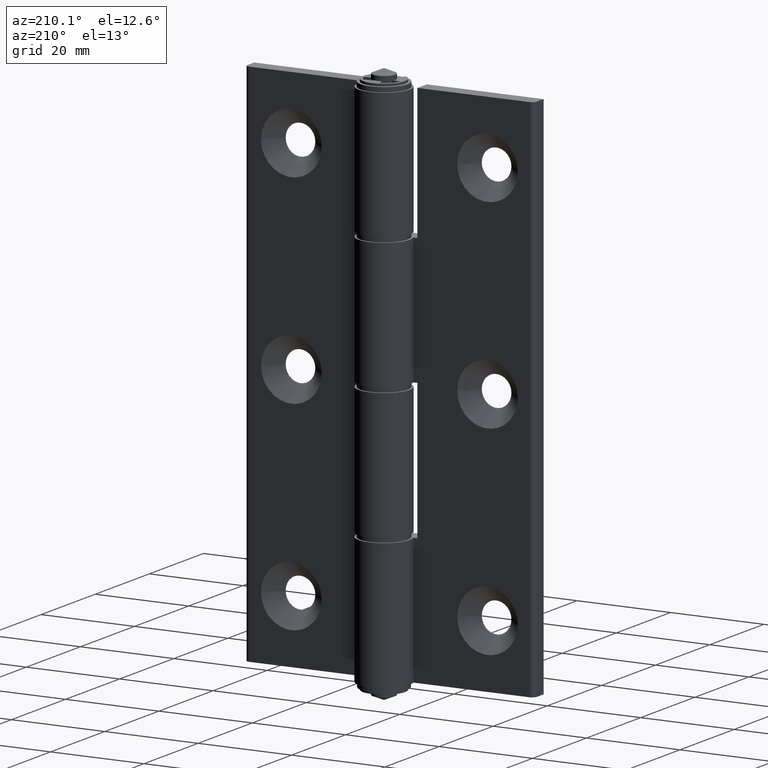
[diagram: clean part render]
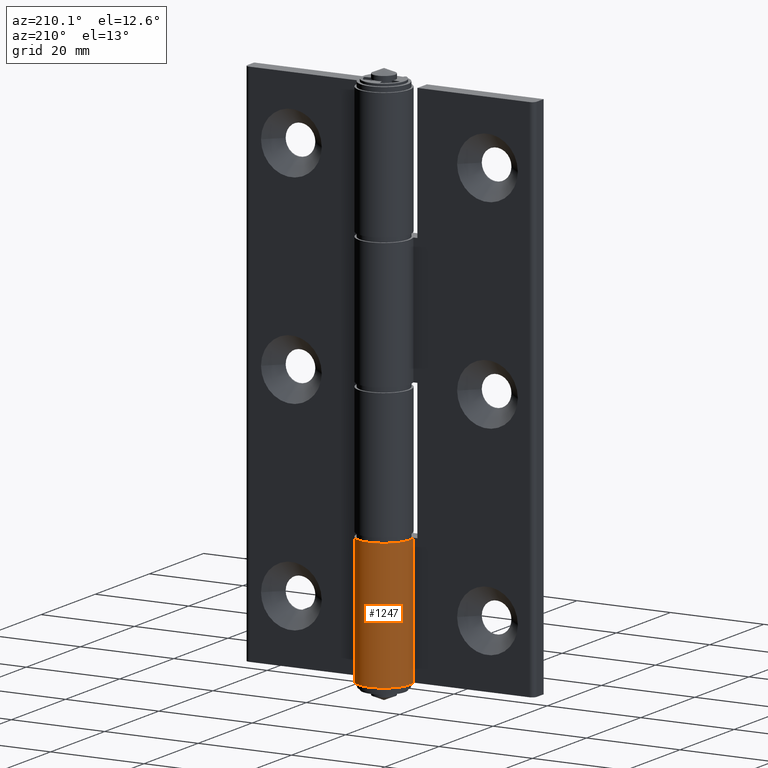
[diagram: same view with one face highlighted and labeled with its STEP entity id]
A machine part, auxiliary view. The second image highlights one B-rep face of the part: STEP entity #1247.
In plain terms, the highlighted cylindrical surface (edge-blend (fillet) strip) has radius 5.5 mm, axis along (0, 0, -1).
Its self-contained STEP definition (entity closure, byte-faithful):
#89=LINE('',#1980,#169);
#90=LINE('',#1983,#170);
#169=VECTOR('',#1561,27.5);
#170=VECTOR('',#1564,27.5);
#275=CYLINDRICAL_SURFACE('',#1348,5.5);
#372=FACE_OUTER_BOUND('',#460,.T.);
#460=EDGE_LOOP('',(#955,#956,#957,#958));
#583=CIRCLE('',#1339,5.5);
#589=CIRCLE('',#1349,5.5);
#661=VERTEX_POINT('',#1946);
#662=VERTEX_POINT('',#1948);
#674=VERTEX_POINT('',#1979);
#675=VERTEX_POINT('',#1981);
#781=EDGE_CURVE('',#661,#662,#583,.T.);
#795=EDGE_CURVE('',#662,#674,#89,.T.);
#796=EDGE_CURVE('',#675,#674,#589,.T.);
#797=EDGE_CURVE('',#675,#661,#90,.T.);
#955=ORIENTED_EDGE('',*,*,#781,.T.);
#956=ORIENTED_EDGE('',*,*,#795,.T.);
#957=ORIENTED_EDGE('',*,*,#796,.F.);
#958=ORIENTED_EDGE('',*,*,#797,.T.);
#1247=ADVANCED_FACE('',(#372),#275,.T.);
#1339=AXIS2_PLACEMENT_3D('',#1950,#1533,#1534);
#1348=AXIS2_PLACEMENT_3D('',#1978,#1559,#1560);
#1349=AXIS2_PLACEMENT_3D('',#1982,#1562,#1563);
#1533=DIRECTION('center_axis',(0.,0.,-1.));
#1534=DIRECTION('ref_axis',(-1.,0.,0.));
#1559=DIRECTION('center_axis',(0.,0.,-1.));
#1560=DIRECTION('ref_axis',(-1.,0.,0.));
#1561=DIRECTION('',(0.,0.,-1.));
#1562=DIRECTION('center_axis',(0.,0.,-1.));
#1563=DIRECTION('ref_axis',(-1.,0.,0.));
#1564=DIRECTION('',(0.,0.,1.));
#1946=CARTESIAN_POINT('',(-5.1234753829798,3.5,-85.5));
#1948=CARTESIAN_POINT('',(-3.08148791101958E-32,0.,-85.5));
#1950=CARTESIAN_POINT('Origin',(0.,5.5,-85.5));
#1978=CARTESIAN_POINT('Origin',(0.,5.5,0.));
#1979=CARTESIAN_POINT('',(0.,0.,-113.));
#1980=CARTESIAN_POINT('',(-3.08148791101958E-32,0.,0.));
#1981=CARTESIAN_POINT('',(-5.1234753829798,3.5,-113.));
#1982=CARTESIAN_POINT('Origin',(0.,5.5,-113.));
#1983=CARTESIAN_POINT('',(-5.1234753829798,3.5,0.));